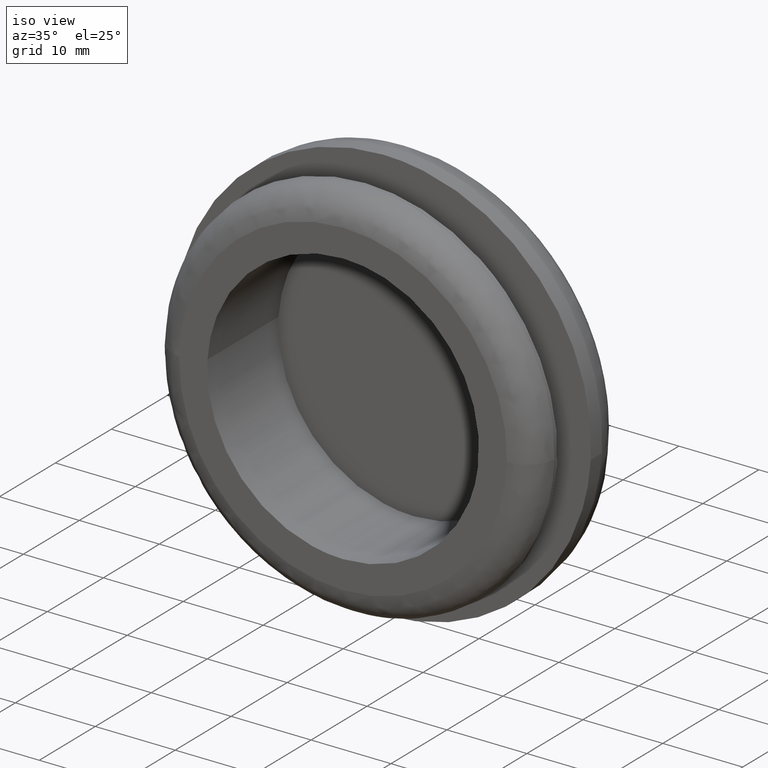
[diagram: clean part render]
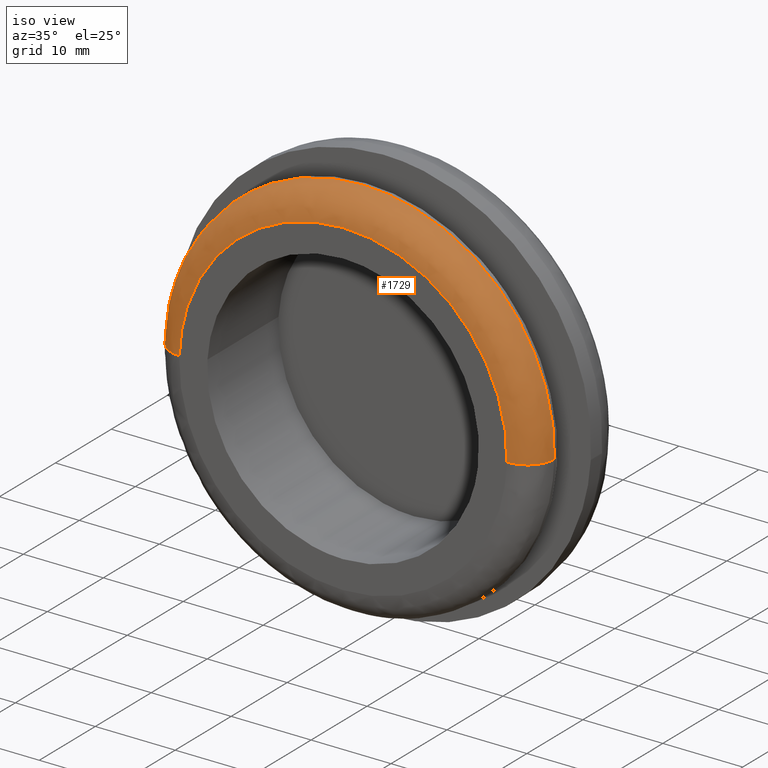
[diagram: same view with one face highlighted and labeled with its STEP entity id]
A machine part, iso view. The second image highlights one B-rep face of the part: STEP entity #1729.
In plain terms, the highlighted face is a freeform B-spline surface patch.
Its self-contained STEP definition (entity closure, byte-faithful):
#1141=CARTESIAN_POINT('',(-16.214163988861721,3.499999999953968,17.694656994196169));
#1142=VERTEX_POINT('',#1141);
#1148=CARTESIAN_POINT('',(0.0,3.499999999999800,24.0));
#1149=VERTEX_POINT('',#1148);
#1150=CARTESIAN_POINT('',(0.0,3.499999999999800,24.0));
#1151=CARTESIAN_POINT('',(-9.333088788494331,3.499999999999800,23.999999999999996));
#1152=CARTESIAN_POINT('',(-16.214163988861724,3.499999999953968,17.694656994196166));
#1160=(BOUNDED_CURVE()B_SPLINE_CURVE(2,(#1150,#1151,#1152),.UNSPECIFIED.,.F.,.U.)B_SPLINE_CURVE_WITH_KNOTS((3,3),(0.500000000000000,0.618415200604588),.UNSPECIFIED.)CURVE()GEOMETRIC_REPRESENTATION_ITEM()RATIONAL_B_SPLINE_CURVE((1.0,0.861267962953927,0.853959781884604))REPRESENTATION_ITEM(''));
#1161=EDGE_CURVE('',#1149,#1142,#1160,.T.);
#1163=CARTESIAN_POINT('',(23.992420542798961,3.499999999829014,-0.603122290649290));
#1164=VERTEX_POINT('',#1163);
#1165=CARTESIAN_POINT('',(23.992420542798961,3.499999999829014,-0.603122290649290));
#1166=CARTESIAN_POINT('',(24.000000000000004,3.499999999999800,-0.301608770970307));
#1167=CARTESIAN_POINT('',(24.0,3.499999999999800,-2.939055E-016));
#1168=CARTESIAN_POINT('',(23.999999999999996,3.499999999999800,23.999999999999996));
#1169=CARTESIAN_POINT('',(0.0,3.499999999999800,24.0));
#1177=(BOUNDED_CURVE()B_SPLINE_CURVE(2,(#1165,#1166,#1167,#1168,#1169),.UNSPECIFIED.,.F.,.U.)B_SPLINE_CURVE_WITH_KNOTS((3,2,3),(0.245579891769673,0.250000000000000,0.500000000000000),.UNSPECIFIED.)CURVE()GEOMETRIC_REPRESENTATION_ITEM()RATIONAL_B_SPLINE_CURVE((0.989826157681273,0.994821521091663,1.0,0.707106781186548,1.0))REPRESENTATION_ITEM(''));
#1178=EDGE_CURVE('',#1164,#1149,#1177,.T.);
#1252=CARTESIAN_POINT('',(-23.992420542798971,3.499999999829014,0.603122290649286));
#1253=VERTEX_POINT('',#1252);
#1269=CARTESIAN_POINT('',(-16.214163988861724,3.499999999953968,17.694656994196166));
#1270=CARTESIAN_POINT('',(-23.736037522919382,3.499999999903461,10.802130565187547));
#1271=CARTESIAN_POINT('',(-23.992420542798968,3.499999999829014,0.603122290649286));
#1279=(BOUNDED_CURVE()B_SPLINE_CURVE(2,(#1269,#1270,#1271),.UNSPECIFIED.,.F.,.U.)B_SPLINE_CURVE_WITH_KNOTS((3,3),(0.618415200604588,0.745579891769674),.UNSPECIFIED.)CURVE()GEOMETRIC_REPRESENTATION_ITEM()RATIONAL_B_SPLINE_CURVE((0.853959781884604,0.846111612190899,0.989826157681274))REPRESENTATION_ITEM(''));
#1280=EDGE_CURVE('',#1142,#1253,#1279,.T.);
#1606=CARTESIAN_POINT('',(20.493525881468749,-2.033738E-013,-0.515166956720143));
#1607=VERTEX_POINT('',#1606);
#1608=CARTESIAN_POINT('',(23.992420542798964,3.499999999829014,-0.603122290649290));
#1609=CARTESIAN_POINT('',(23.992420542457719,2.327887E-009,-0.603122290631514));
#1610=CARTESIAN_POINT('',(20.493525881468752,-2.033738E-013,-0.515166956720143));
#1618=(BOUNDED_CURVE()B_SPLINE_CURVE(2,(#1608,#1609,#1610),.UNSPECIFIED.,.F.,.U.)B_SPLINE_CURVE_WITH_KNOTS((3,3),(-1.723441281884290,-0.263586879616255),.UNSPECIFIED.)CURVE()GEOMETRIC_REPRESENTATION_ITEM()RATIONAL_B_SPLINE_CURVE((0.883897567103251,0.626638727376880,0.888510408815568))REPRESENTATION_ITEM(''));
#1619=EDGE_CURVE('',#1164,#1607,#1618,.T.);
#1636=CARTESIAN_POINT('',(-20.493525881468749,-2.034363E-013,0.515166956720147));
#1637=VERTEX_POINT('',#1636);
#1653=CARTESIAN_POINT('',(-23.992420542798968,3.499999999829014,0.603122290649286));
#1654=CARTESIAN_POINT('',(-23.992420542457733,2.327890E-009,0.603122290631516));
#1655=CARTESIAN_POINT('',(-20.493525881468752,-2.034363E-013,0.515166956720147));
#1663=(BOUNDED_CURVE()B_SPLINE_CURVE(2,(#1653,#1654,#1655),.UNSPECIFIED.,.F.,.U.)B_SPLINE_CURVE_WITH_KNOTS((3,3),(-1.723441281884290,-0.263586879616256),.UNSPECIFIED.)CURVE()GEOMETRIC_REPRESENTATION_ITEM()RATIONAL_B_SPLINE_CURVE((0.883897567103251,0.626638727376880,0.888510408815567))REPRESENTATION_ITEM(''));
#1664=EDGE_CURVE('',#1253,#1637,#1663,.T.);
#1669=CARTESIAN_POINT('',(23.983905309504898,3.744034645905404,-0.602908234413439));
#1670=CARTESIAN_POINT('',(24.586813543918336,3.744034645905404,23.380997075091457));
#1671=CARTESIAN_POINT('',(0.602908234413441,3.744034645905404,23.983905309504898));
#1672=CARTESIAN_POINT('',(-23.380997075091457,3.744034645905404,24.586813543918336));
#1673=CARTESIAN_POINT('',(-23.983905309504898,3.744034645905404,0.602908234413442));
#1674=CARTESIAN_POINT('',(24.264421946471508,-0.270674885224724,-0.609959871256340));
#1675=CARTESIAN_POINT('',(24.874381817727848,-0.270674885224724,23.654462075215172));
#1676=CARTESIAN_POINT('',(0.609959871256341,-0.270674885224724,24.264421946471508));
#1677=CARTESIAN_POINT('',(-23.654462075215172,-0.270674885224724,24.874381817727848));
#1678=CARTESIAN_POINT('',(-24.264421946471508,-0.270674885224724,0.609959871256342));
#1679=CARTESIAN_POINT('',(20.250875526843615,0.008426773074972,-0.509067203679168));
#1680=CARTESIAN_POINT('',(20.759942730522791,0.008426773074972,19.741808323164456));
#1681=CARTESIAN_POINT('',(0.509067203679170,0.008426773074972,20.250875526843615));
#1682=CARTESIAN_POINT('',(-19.741808323164456,0.008426773074972,20.759942730522791));
#1683=CARTESIAN_POINT('',(-20.250875526843615,0.008426773074972,0.509067203679171));
#1691=(BOUNDED_SURFACE()B_SPLINE_SURFACE(2,2,((#1669,#1674,#1679),(#1670,#1675,#1680),(#1671,#1676,#1681),(#1672,#1677,#1682),(#1673,#1678,#1683)),.UNSPECIFIED.,.F.,.F.,.U.)B_SPLINE_SURFACE_WITH_KNOTS((3,2,3),(3,3),(0.0,39.750389030324818,79.500778060649637),(0.0,6.378296138175077),.UNSPECIFIED.)GEOMETRIC_REPRESENTATION_ITEM()RATIONAL_B_SPLINE_SURFACE(((0.910892941386805,0.599412934105556,0.915966621324616),(0.644098575789570,0.423848950436964,0.647686209279166),(0.910892941386805,0.599412934105556,0.915966621324616),(0.644098575789570,0.423848950436964,0.647686209279166),(0.910892941386805,0.599412934105556,0.915966621324616)))REPRESENTATION_ITEM('')SURFACE());
#1692=ORIENTED_EDGE('',*,*,#1161,.T.);
#1693=ORIENTED_EDGE('',*,*,#1280,.T.);
#1694=ORIENTED_EDGE('',*,*,#1664,.T.);
#1695=CARTESIAN_POINT('',(0.0,-2.029488E-013,20.500000000000000));
#1696=VERTEX_POINT('',#1695);
#1697=CARTESIAN_POINT('',(0.0,-2.029488E-013,20.500000000000000));
#1698=CARTESIAN_POINT('',(-19.991146461503295,-2.029488E-013,20.500000000000000));
#1699=CARTESIAN_POINT('',(-20.493525881468749,-2.034363E-013,0.515166956720147));
#1707=(BOUNDED_CURVE()B_SPLINE_CURVE(2,(#1697,#1698,#1699),.UNSPECIFIED.,.F.,.U.)B_SPLINE_CURVE_WITH_KNOTS((3,3),(0.500000000000000,0.745579891768057),.UNSPECIFIED.)CURVE()GEOMETRIC_REPRESENTATION_ITEM()RATIONAL_B_SPLINE_CURVE((1.0,0.712285260096778,0.989826157677620))REPRESENTATION_ITEM(''));
#1708=EDGE_CURVE('',#1696,#1637,#1707,.T.);
#1709=ORIENTED_EDGE('',*,*,#1708,.F.);
#1710=CARTESIAN_POINT('',(20.493525881468745,-2.033738E-013,-0.515166956720143));
#1711=CARTESIAN_POINT('',(20.499999999999996,-2.029488E-013,-0.257624158631803));
#1712=CARTESIAN_POINT('',(20.500000000000000,-2.029488E-013,-2.939055E-016));
#1713=CARTESIAN_POINT('',(20.500000000000007,-2.029488E-013,20.500000000000007));
#1714=CARTESIAN_POINT('',(0.0,-2.029488E-013,20.500000000000000));
#1722=(BOUNDED_CURVE()B_SPLINE_CURVE(2,(#1710,#1711,#1712,#1713,#1714),.UNSPECIFIED.,.F.,.U.)B_SPLINE_CURVE_WITH_KNOTS((3,2,3),(0.245579891768058,0.250000000000000,0.500000000000000),.UNSPECIFIED.)CURVE()GEOMETRIC_REPRESENTATION_ITEM()RATIONAL_B_SPLINE_CURVE((0.989826157677621,0.994821521089770,1.0,0.707106781186548,1.0))REPRESENTATION_ITEM(''));
#1723=EDGE_CURVE('',#1607,#1696,#1722,.T.);
#1724=ORIENTED_EDGE('',*,*,#1723,.F.);
#1725=ORIENTED_EDGE('',*,*,#1619,.F.);
#1726=ORIENTED_EDGE('',*,*,#1178,.T.);
#1727=EDGE_LOOP('',(#1692,#1693,#1694,#1709,#1724,#1725,#1726));
#1728=FACE_OUTER_BOUND('',#1727,.T.);
#1729=ADVANCED_FACE('',(#1728),#1691,.T.);